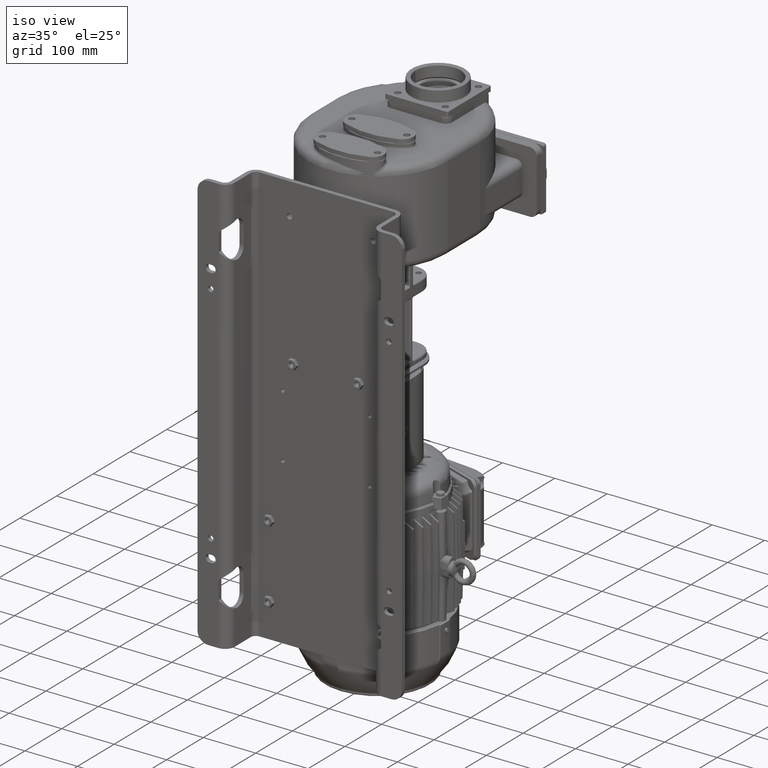
[diagram: clean part render]
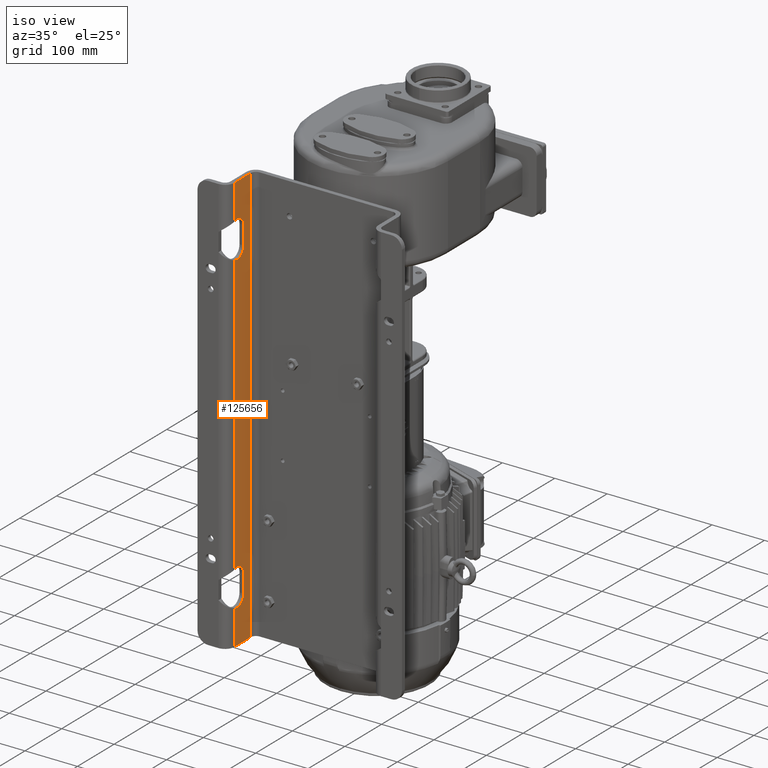
[diagram: same view with one face highlighted and labeled with its STEP entity id]
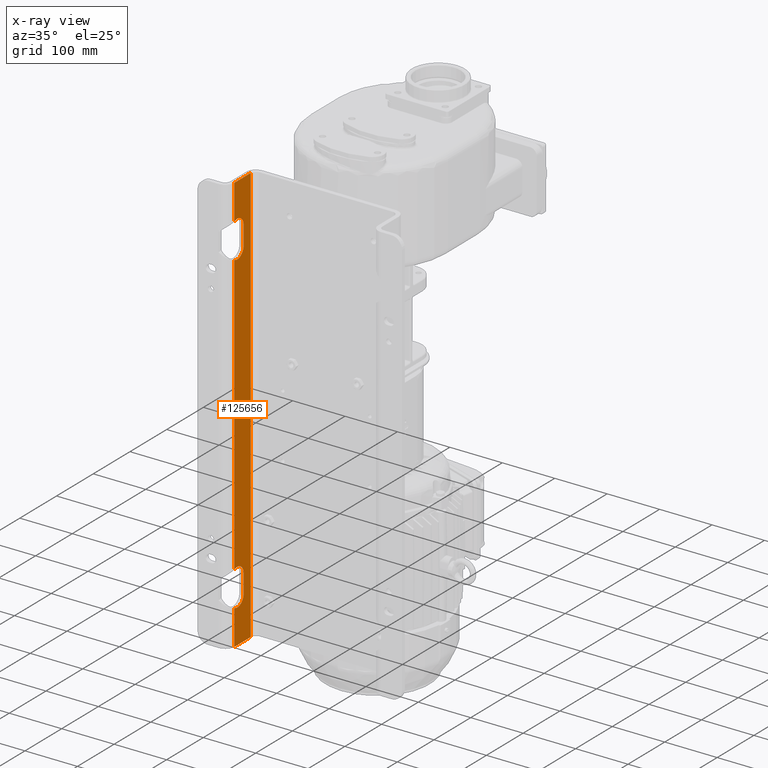
[diagram: x-ray of the same camera — body ghosted, the highlighted face saturated]
A machine part, iso view. The second image highlights one B-rep face of the part: STEP entity #125656.
The next image is the same camera in x-ray: the body ghosted, the highlighted face saturated — about 0% of this face is hidden behind the body in this view.
In plain terms, the highlighted planar face has unit normal (-1, 0, 0).
Its self-contained STEP definition (entity closure, byte-faithful):
#21686=DIRECTION('',(0.E0,0.E0,-1.E0));
#21687=VECTOR('',#21686,8.E2);
#21688=CARTESIAN_POINT('',(-1.37E2,-1.8E1,6.05E1));
#21689=LINE('',#21688,#21687);
#45311=DIRECTION('',(0.E0,0.E0,-1.E0));
#45312=VECTOR('',#45311,3.5E1);
#45313=CARTESIAN_POINT('',(-1.37E2,-3.7E1,-2.2E1));
#45314=LINE('',#45313,#45312);
#45315=CARTESIAN_POINT('',(-1.37E2,-5.45E1,-2.2E1));
#45316=DIRECTION('',(1.E0,0.E0,0.E0));
#45317=DIRECTION('',(0.E0,1.E0,0.E0));
#45318=AXIS2_PLACEMENT_3D('',#45315,#45316,#45317);
#45320=DIRECTION('',(0.E0,0.E0,-1.E0));
#45321=VECTOR('',#45320,6.668861169916E1);
#45322=CARTESIAN_POINT('',(-1.37E2,-6.2E1,6.05E1));
#45323=LINE('',#45322,#45321);
#45324=DIRECTION('',(0.E0,0.E0,-1.E0));
#45325=VECTOR('',#45324,6.668861169916E1);
#45326=CARTESIAN_POINT('',(-1.37E2,-6.2E1,-6.728113883008E2));
#45327=LINE('',#45326,#45325);
#45328=CARTESIAN_POINT('',(-1.37E2,-5.45E1,-6.57E2));
#45329=DIRECTION('',(1.E0,0.E0,0.E0));
#45330=DIRECTION('',(0.E0,-4.285714285714E-1,-9.035079029053E-1));
#45331=AXIS2_PLACEMENT_3D('',#45328,#45329,#45330);
#45333=DIRECTION('',(0.E0,0.E0,-1.E0));
#45334=VECTOR('',#45333,3.5E1);
#45335=CARTESIAN_POINT('',(-1.37E2,-3.7E1,-6.22E2));
#45336=LINE('',#45335,#45334);
#45337=CARTESIAN_POINT('',(-1.37E2,-5.45E1,-6.22E2));
#45338=DIRECTION('',(1.E0,0.E0,0.E0));
#45339=DIRECTION('',(0.E0,1.E0,0.E0));
#45340=AXIS2_PLACEMENT_3D('',#45337,#45338,#45339);
#45342=DIRECTION('',(0.E0,0.E0,-1.E0));
#45343=VECTOR('',#45342,5.333772233983E2);
#45344=CARTESIAN_POINT('',(-1.37E2,-6.2E1,-7.281138830084E1));
#45345=LINE('',#45344,#45343);
#45346=CARTESIAN_POINT('',(-1.37E2,-5.45E1,-5.7E1));
#45347=DIRECTION('',(1.E0,0.E0,0.E0));
#45348=DIRECTION('',(0.E0,-4.285714285714E-1,-9.035079029053E-1));
#45349=AXIS2_PLACEMENT_3D('',#45346,#45347,#45348);
#45751=CARTESIAN_POINT('',(-1.37E2,-6.2E1,-6.188611699158E0));
#45836=DIRECTION('',(0.E0,1.E0,0.E0));
#45837=VECTOR('',#45836,4.4E1);
#45838=CARTESIAN_POINT('',(-1.37E2,-6.2E1,6.05E1));
#45839=LINE('',#45838,#45837);
#46023=CARTESIAN_POINT('',(-1.37E2,-6.2E1,-7.281138830084E1));
#46025=CARTESIAN_POINT('',(-1.37E2,-6.2E1,-6.061886116992E2));
#46145=CARTESIAN_POINT('',(-1.37E2,-6.2E1,-6.728113883008E2));
#46159=DIRECTION('',(0.E0,1.E0,0.E0));
#46160=VECTOR('',#46159,4.4E1);
#46161=CARTESIAN_POINT('',(-1.37E2,-6.2E1,-7.395E2));
#46162=LINE('',#46161,#46160);
#68740=CARTESIAN_POINT('',(-1.37E2,-6.2E1,6.05E1));
#68742=VERTEX_POINT('',#68740);
#68743=CARTESIAN_POINT('',(-1.37E2,-1.8E1,6.05E1));
#68744=VERTEX_POINT('',#68743);
#68756=CARTESIAN_POINT('',(-1.37E2,-6.2E1,-7.395E2));
#68758=VERTEX_POINT('',#68756);
#68759=CARTESIAN_POINT('',(-1.37E2,-1.8E1,-7.395E2));
#68760=VERTEX_POINT('',#68759);
#68866=VERTEX_POINT('',#46023);
#68869=VERTEX_POINT('',#45751);
#68871=VERTEX_POINT('',#46145);
#68874=VERTEX_POINT('',#46025);
#68875=CARTESIAN_POINT('',(-1.37E2,-3.7E1,-2.2E1));
#68876=CARTESIAN_POINT('',(-1.37E2,-3.7E1,-5.7E1));
#68877=VERTEX_POINT('',#68875);
#68878=VERTEX_POINT('',#68876);
#68879=CARTESIAN_POINT('',(-1.37E2,-3.7E1,-6.57E2));
#68880=VERTEX_POINT('',#68879);
#68881=CARTESIAN_POINT('',(-1.37E2,-3.7E1,-6.22E2));
#68882=VERTEX_POINT('',#68881);
#125626=CARTESIAN_POINT('',(-1.37E2,-6.2E1,6.05E1));
#125627=DIRECTION('',(-1.E0,0.E0,0.E0));
#125628=DIRECTION('',(0.E0,1.E0,0.E0));
#125629=AXIS2_PLACEMENT_3D('',#125626,#125627,#125628);
#125630=PLANE('',#125629);
#125632=ORIENTED_EDGE('',*,*,#125631,.F.);
#125634=ORIENTED_EDGE('',*,*,#125633,.T.);
#125636=ORIENTED_EDGE('',*,*,#125635,.F.);
#125638=ORIENTED_EDGE('',*,*,#125637,.T.);
#125639=ORIENTED_EDGE('',*,*,#97281,.T.);
#125641=ORIENTED_EDGE('',*,*,#125640,.F.);
#125643=ORIENTED_EDGE('',*,*,#125642,.F.);
#125645=ORIENTED_EDGE('',*,*,#125644,.T.);
#125647=ORIENTED_EDGE('',*,*,#125646,.F.);
#125649=ORIENTED_EDGE('',*,*,#125648,.T.);
#125651=ORIENTED_EDGE('',*,*,#125650,.F.);
#125653=ORIENTED_EDGE('',*,*,#125652,.T.);
#125654=EDGE_LOOP('',(#125632,#125634,#125636,#125638,#125639,#125641,#125643,
#125645,#125647,#125649,#125651,#125653));
#125655=FACE_OUTER_BOUND('',#125654,.F.);
#125656=ADVANCED_FACE('',(#125655),#125630,.F.);
#45319=CIRCLE('',#45318,1.75E1);
#45332=CIRCLE('',#45331,1.75E1);
#45341=CIRCLE('',#45340,1.75E1);
#45350=CIRCLE('',#45349,1.75E1);
#97281=EDGE_CURVE('',#68744,#68760,#21689,.T.);
#125631=EDGE_CURVE('',#68877,#68878,#45314,.T.);
#125633=EDGE_CURVE('',#68877,#68869,#45319,.T.);
#125635=EDGE_CURVE('',#68742,#68869,#45323,.T.);
#125637=EDGE_CURVE('',#68742,#68744,#45839,.T.);
#125640=EDGE_CURVE('',#68758,#68760,#46162,.T.);
#125642=EDGE_CURVE('',#68871,#68758,#45327,.T.);
#125644=EDGE_CURVE('',#68871,#68880,#45332,.T.);
#125646=EDGE_CURVE('',#68882,#68880,#45336,.T.);
#125648=EDGE_CURVE('',#68882,#68874,#45341,.T.);
#125650=EDGE_CURVE('',#68866,#68874,#45345,.T.);
#125652=EDGE_CURVE('',#68866,#68878,#45350,.T.);